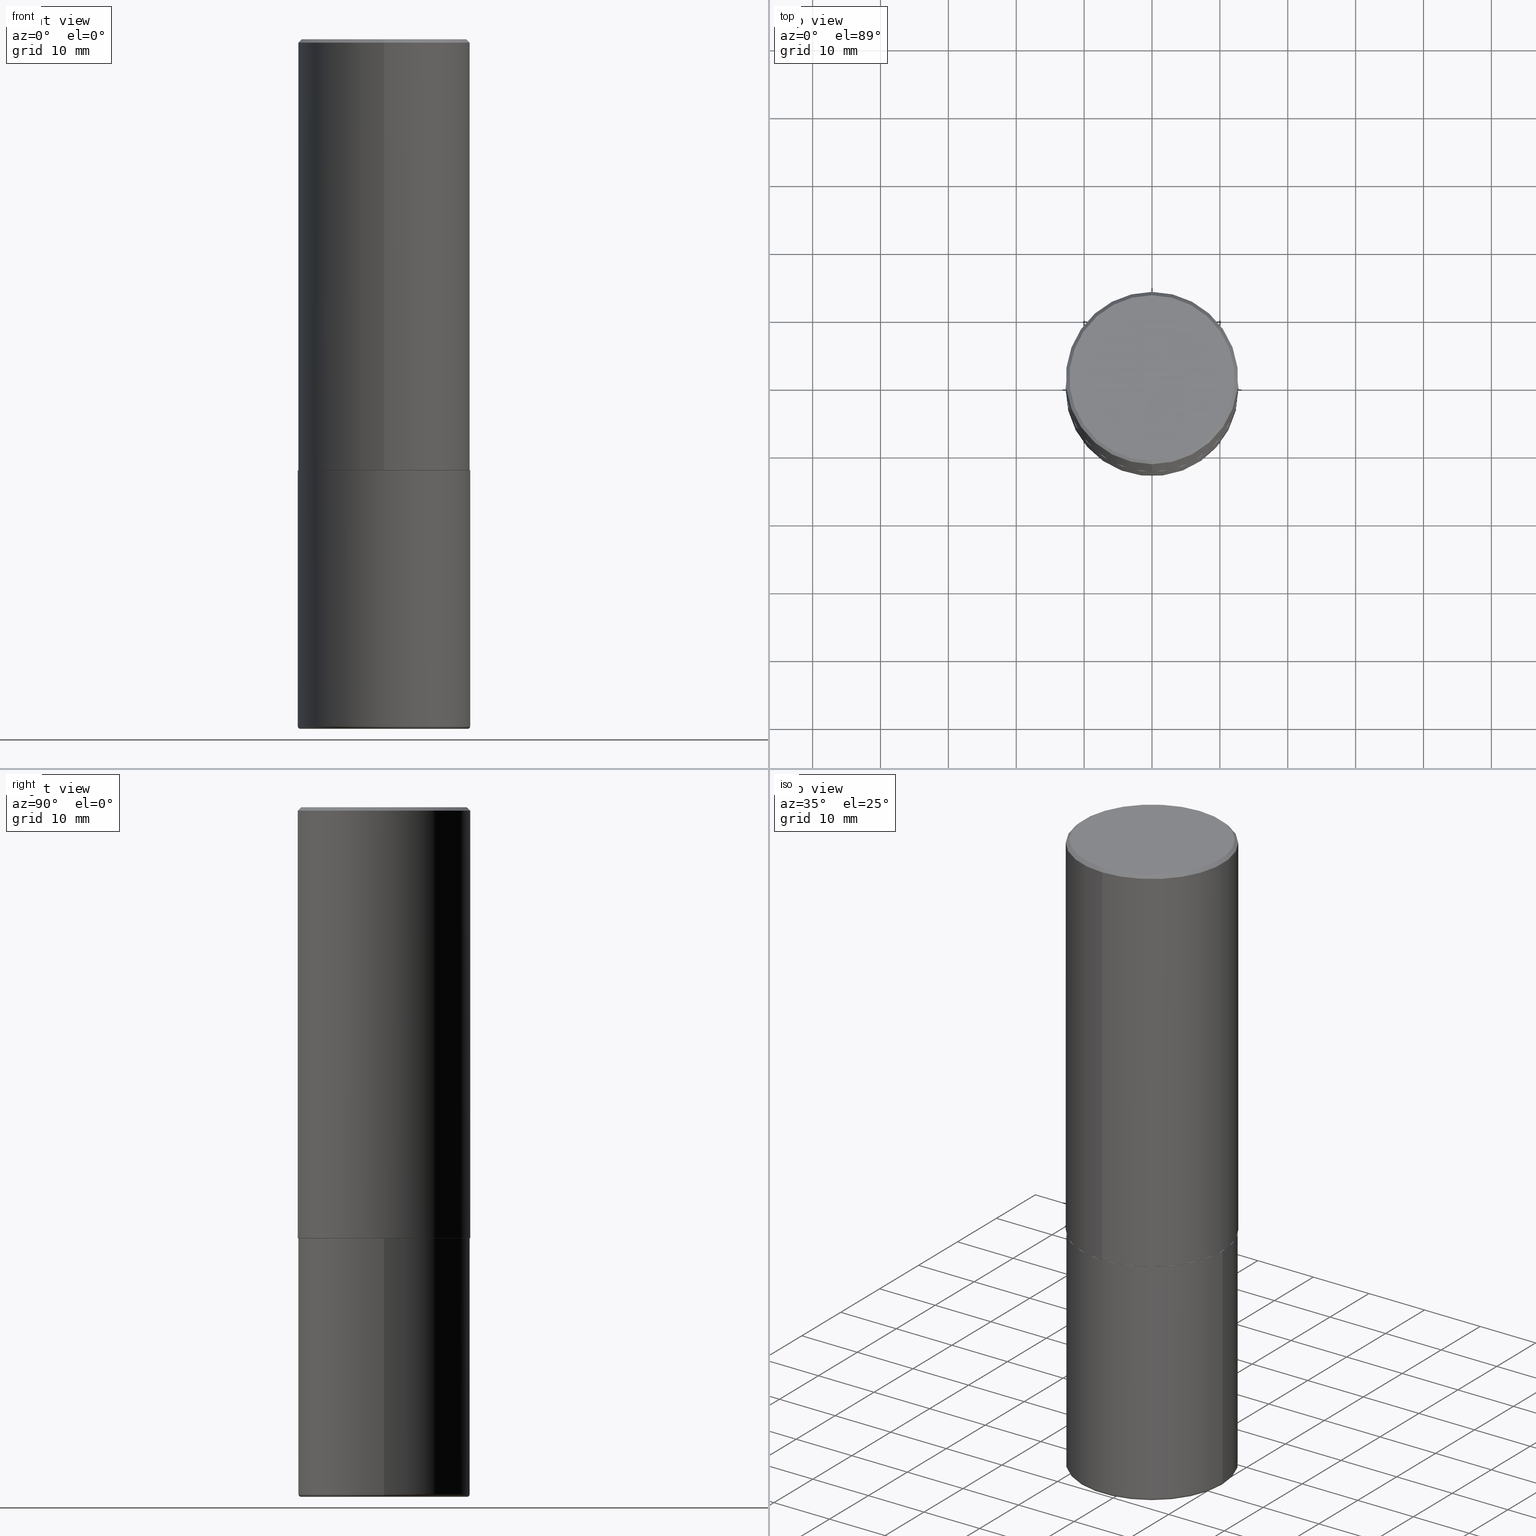
[diagram: canonical four-view strip — front | top / right | iso, engineering-drawing reading convention]
A machine part, canonical four-view strip (front | top / right | iso — engineering-drawing reading convention). The complete STEP part file that produces these views, byte-faithful:
ISO-10303-21;
HEADER;
FILE_DESCRIPTION (( 'STEP AP203' ),
    '1' );
FILE_NAME ('38302.STEP',
    '2024-03-02T21:40:23',
    ( '' ),
    ( '' ),
    'SwSTEP 2.0',
    'SolidWorks 2023',
    '' );
FILE_SCHEMA (( 'CONFIG_CONTROL_DESIGN' ));
ENDSEC;

DATA;
#1 = DIRECTION ( 'NONE',  ( -2.444465131706345255E-29, 3.492918657822378473E-15, 1.000000000000000000 ) ) ;
#2 = ORIENTED_EDGE ( 'NONE', *, *, #284, .T. ) ;
#3 = AXIS2_PLACEMENT_3D ( 'NONE', #313, #25, #157 ) ;
#4 = DIRECTION ( 'NONE',  ( -6.982962677686265922E-15, -1.000000000000000000, 3.491643216902136408E-15 ) ) ;
#5 = EDGE_CURVE ( 'NONE', #264, #274, #129, .T. ) ;
#6 = ORIENTED_EDGE ( 'NONE', *, *, #284, .F. ) ;
#7 = LINE ( 'NONE', #265, #285 ) ;
#8 = EDGE_LOOP ( 'NONE', ( #369, #320, #2, #331 ) ) ;
#9 = LINE ( 'NONE', #397, #297 ) ;
#10 = ORIENTED_EDGE ( 'NONE', *, *, #336, .F. ) ;
#11 = ADVANCED_FACE ( 'NONE', ( #398 ), #108, .T. ) ;
#12 = DIRECTION ( 'NONE',  ( 1.000000000000000000, -6.982962677686265922E-15, 0.000000000000000000 ) ) ;
#13 = CC_DESIGN_APPROVAL ( #219, ( #121 ) ) ;
#14 = VERTEX_POINT ( 'NONE', #365 ) ;
#15 = PERSON_AND_ORGANIZATION ( #266, #298 ) ;
#16 = LINE ( 'NONE', #59, #60 ) ;
#17 = LINE ( 'NONE', #412, #279 ) ;
#18 = CARTESIAN_POINT ( 'NONE',  ( 3.545608251442960663E-15, 0.4989999999999912283, -2.500000000000001332 ) ) ;
#19 = EDGE_CURVE ( 'NONE', #148, #14, #410, .T. ) ;
#20 = APPROVAL_STATUS ( 'not_yet_approved' ) ;
#21 = AXIS2_PLACEMENT_3D ( 'NONE', #158, #151, #249 ) ;
#22 = DIRECTION ( 'NONE',  ( 2.438088387897960049E-29, -3.491481338843145188E-15, -1.000000000000000000 ) ) ;
#23 = ADVANCED_BREP_SHAPE_REPRESENTATION ( '38302', ( #100, #374, #101 ), #291 ) ;
#24 = EDGE_CURVE ( 'NONE', #177, #256, #54, .T. ) ;
#25 = DIRECTION ( 'NONE',  ( -2.444465131706345255E-29, 3.492918657822378473E-15, 1.000000000000000000 ) ) ;
#26 = APPROVAL_STATUS ( 'not_yet_approved' ) ;
#27 = DIRECTION ( 'NONE',  ( 6.982962677686265922E-15, 1.000000000000000000, -3.491643216902136408E-15 ) ) ;
#28 = ADVANCED_FACE ( 'NONE', ( #214 ), #403, .T. ) ;
#29 = ORIENTED_EDGE ( 'NONE', *, *, #356, .F. ) ;
#30 = AXIS2_PLACEMENT_3D ( 'NONE', #63, #277, #188 ) ;
#31 = PERSON_AND_ORGANIZATION ( #266, #298 ) ;
#32 = CC_DESIGN_PERSON_AND_ORGANIZATION_ASSIGNMENT ( #31, #353, ( #330 ) ) ;
#33 = CIRCLE ( 'NONE', #76, 0.4799999999999998157 ) ;
#34 = VECTOR ( 'NONE', #166, 39.37007874015748143 ) ;
#35 = ORIENTED_EDGE ( 'NONE', *, *, #268, .T. ) ;
#36 = CARTESIAN_POINT ( 'NONE',  ( 9.745193192647769069E-29, -1.391355313528993407E-14, -3.984999999999999876 ) ) ;
#37 = ORIENTED_EDGE ( 'NONE', *, *, #336, .T. ) ;
#38 = CC_DESIGN_DATE_AND_TIME_ASSIGNMENT ( #319, #224, ( #330 ) ) ;
#39 = CARTESIAN_POINT ( 'NONE',  ( 6.113672015462842613E-29, -8.728703347107864943E-15, -2.500000000000000000 ) ) ;
#40 = DIRECTION ( 'NONE',  ( 1.000000000000000000, -6.982962677686269077E-15, 0.000000000000000000 ) ) ;
#41 = APPLICATION_CONTEXT ( 'configuration controlled 3d designs of mechanical parts and assemblies' ) ;
#42 = AXIS2_PLACEMENT_3D ( 'NONE', #259, #107, #4 ) ;
#43 = AXIS2_PLACEMENT_3D ( 'NONE', #240, #156, #348 ) ;
#44 = DIRECTION ( 'NONE',  ( -2.445468806185136597E-29, 3.491481338843145583E-15, 1.000000000000000000 ) ) ;
#45 = VERTEX_POINT ( 'NONE', #307 ) ;
#46 = CARTESIAN_POINT ( 'NONE',  ( -3.491481338843073796E-15, -0.5000000000000089928, -2.498999999999998778 ) ) ;
#47 = ORIENTED_EDGE ( 'NONE', *, *, #278, .T. ) ;
#48 = ADVANCED_FACE ( 'NONE', ( #215 ), #181, .T. ) ;
#49 = DIRECTION ( 'NONE',  ( -2.445468806185136597E-29, 3.491481338843145583E-15, 1.000000000000000000 ) ) ;
#50 = ORIENTED_EDGE ( 'NONE', *, *, #268, .F. ) ;
#51 =( NAMED_UNIT ( * ) SI_UNIT ( $, .STERADIAN. ) SOLID_ANGLE_UNIT ( ) );
#52 = CIRCLE ( 'NONE', #112, 0.5000000000000000000 ) ;
#53 = AXIS2_PLACEMENT_3D ( 'NONE', #174, #69, #235 ) ;
#54 = LINE ( 'NONE', #18, #387 ) ;
#55 = PERSON_AND_ORGANIZATION ( #266, #298 ) ;
#56 = CARTESIAN_POINT ( 'NONE',  ( 4.206032757375876713E-29, -1.146055134077212698E-14, -2.500000000000000000 ) ) ;
#57 = DATE_TIME_ROLE ( 'creation_date' ) ;
#58 = APPROVAL ( #98, 'UNSPECIFIED' ) ;
#59 = CARTESIAN_POINT ( 'NONE',  ( -0.5000000000000000000, 3.552713678800500929E-15, -2.459467545127452891E-29 ) ) ;
#60 = VECTOR ( 'NONE', #413, 39.37007874015748143 ) ;
#61 = DIRECTION ( 'NONE',  ( 5.024295867790635654E-15, 0.7071067811869121700, 0.7071067811861828645 ) ) ;
#62 = MECHANICAL_CONTEXT ( 'NONE', #91, 'mechanical' ) ;
#63 = CARTESIAN_POINT ( 'NONE',  ( 9.745193192647769069E-29, -1.391355313528993407E-14, -3.984999999999999876 ) ) ;
#64 = COORDINATED_UNIVERSAL_TIME_OFFSET ( 5, 0, .BEHIND. ) ;
#65 = AXIS2_PLACEMENT_3D ( 'NONE', #169, #228, #296 ) ;
#66 = EDGE_CURVE ( 'NONE', #396, #177, #418, .T. ) ;
#67 = VERTEX_POINT ( 'NONE', #185 ) ;
#68 = TOROIDAL_SURFACE ( 'NONE', #194, 0.4850000000000000422, 0.01500000000000011394 ) ;
#69 = DIRECTION ( 'NONE',  ( -2.445468806185136597E-29, 3.491481338843145583E-15, 1.000000000000000000 ) ) ;
#70 = ORIENTED_EDGE ( 'NONE', *, *, #190, .T. ) ;
#71 = CC_DESIGN_DATE_AND_TIME_ASSIGNMENT ( #408, #57, ( #121 ) ) ;
#72 = PLANE ( 'NONE',  #43 ) ;
#73 = EDGE_LOOP ( 'NONE', ( #80, #303, #50, #367 ) ) ;
#74 = FACE_OUTER_BOUND ( 'NONE', #104, .T. ) ;
#75 = ORIENTED_EDGE ( 'NONE', *, *, #386, .T. ) ;
#76 = AXIS2_PLACEMENT_3D ( 'NONE', #241, #373, #88 ) ;
#77 = PRODUCT_DEFINITION_FORMATION_WITH_SPECIFIED_SOURCE ( 'ANY', '', #168, .NOT_KNOWN. ) ;
#78 = DIRECTION ( 'NONE',  ( -6.982962677686265922E-15, -1.000000000000000000, 3.492918657822378473E-15 ) ) ;
#79 = ADVANCED_FACE ( 'NONE', ( #128 ), #153, .F. ) ;
#80 = ORIENTED_EDGE ( 'NONE', *, *, #66, .T. ) ;
#81 = ORIENTED_EDGE ( 'NONE', *, *, #377, .F. ) ;
#82 = LINE ( 'NONE', #308, #272 ) ;
#83 = ORIENTED_EDGE ( 'NONE', *, *, #278, .F. ) ;
#84 = AXIS2_PLACEMENT_3D ( 'NONE', #263, #361, #78 ) ;
#85 =( CONVERSION_BASED_UNIT ( 'INCH', #344 ) LENGTH_UNIT ( ) NAMED_UNIT ( #395 ) );
#86 = CIRCLE ( 'NONE', #254, 0.4799999999999998157 ) ;
#87 = CONICAL_SURFACE ( 'NONE', #124, 0.4989999999999999991, 0.7853981633979605359 ) ;
#88 = DIRECTION ( 'NONE',  ( -6.982962677686265922E-15, -1.000000000000000000, 3.492918657822378473E-15 ) ) ;
#89 = EDGE_CURVE ( 'NONE', #256, #326, #216, .T. ) ;
#90 = APPROVAL_ROLE ( '' ) ;
#91 = APPLICATION_CONTEXT ( 'configuration controlled 3d designs of mechanical parts and assemblies' ) ;
#92 = DIRECTION ( 'NONE',  ( -1.000000000000000000, 6.982962677686265922E-15, -4.876176775795935793E-29 ) ) ;
#93 = CARTESIAN_POINT ( 'NONE',  ( 3.549160965121762351E-15, 0.4989999999999912283, -2.500000000000001332 ) ) ;
#94 = AXIS2_PLACEMENT_3D ( 'NONE', #111, #233, #347 ) ;
#95 = EDGE_CURVE ( 'NONE', #197, #67, #322, .T. ) ;
#96 = CC_DESIGN_APPROVAL ( #58, ( #330 ) ) ;
#97 = COORDINATED_UNIVERSAL_TIME_OFFSET ( 5, 0, .BEHIND. ) ;
#98 = APPROVAL_STATUS ( 'not_yet_approved' ) ;
#99 = SHAPE_DEFINITION_REPRESENTATION ( #160, #23 ) ;
#100 = MANIFOLD_SOLID_BREP ( 'Body-Move/Copy2[1]', #242 ) ;
#101 = AXIS2_PLACEMENT_3D ( 'NONE', #123, #375, #184 ) ;
#102 = DIRECTION ( 'NONE',  ( 6.982962677686265922E-15, 1.000000000000000000, -3.491643216902136408E-15 ) ) ;
#103 = EDGE_CURVE ( 'NONE', #197, #274, #16, .T. ) ;
#104 = EDGE_LOOP ( 'NONE', ( #221, #175, #299, #385 ) ) ;
#105 = DIRECTION ( 'NONE',  ( -2.445468806185136597E-29, 3.491481338843145583E-15, 1.000000000000000000 ) ) ;
#106 = ORIENTED_EDGE ( 'NONE', *, *, #95, .T. ) ;
#107 = DIRECTION ( 'NONE',  ( -2.444465131706345255E-29, 3.492918657822378473E-15, 1.000000000000000000 ) ) ;
#108 = CYLINDRICAL_SURFACE ( 'NONE', #171, 0.5000000000000000000 ) ;
#109 = ADVANCED_FACE ( 'NONE', ( #409 ), #122, .T. ) ;
#110 = FACE_OUTER_BOUND ( 'NONE', #145, .T. ) ;
#111 = CARTESIAN_POINT ( 'NONE',  ( 4.888930263412717169E-31, -6.985837315644793974E-17, -0.02000000000000010797 ) ) ;
#112 = AXIS2_PLACEMENT_3D ( 'NONE', #39, #49, #232 ) ;
#113 = CC_DESIGN_PERSON_AND_ORGANIZATION_ASSIGNMENT ( #220, #350, ( #77 ) ) ;
#114 = DIRECTION ( 'NONE',  ( -2.444465131706345255E-29, 3.492918657822378473E-15, 1.000000000000000000 ) ) ;
#115 = ORIENTED_EDGE ( 'NONE', *, *, #118, .F. ) ;
#116 = PERSON_AND_ORGANIZATION_ROLE ( 'design_owner' ) ;
#117 = EDGE_LOOP ( 'NONE', ( #10, #252, #270, #251 ) ) ;
#118 = EDGE_CURVE ( 'NONE', #142, #45, #312, .T. ) ;
#119 = PERSON_AND_ORGANIZATION ( #266, #298 ) ;
#120 = CARTESIAN_POINT ( 'NONE',  ( 3.421651712066270057E-15, 0.4799999999999998157, -1.552124180431797316E-15 ) ) ;
#121 = PRODUCT_DEFINITION ( 'UNKNOWN', '', #77, #351 ) ;
#122 = CONICAL_SURFACE ( 'NONE', #290, 0.5000000000000000000, 0.7853981633974473908 ) ;
#123 = CARTESIAN_POINT ( 'NONE',  ( 0.000000000000000000, 0.000000000000000000, 0.000000000000000000 ) ) ;
#124 = AXIS2_PLACEMENT_3D ( 'NONE', #359, #1, #332 ) ;
#125 = CARTESIAN_POINT ( 'NONE',  ( 6.111162829265862436E-29, -8.732296644555945592E-15, -2.499999999999999556 ) ) ;
#126 = DIRECTION ( 'NONE',  ( -6.982962677686265922E-15, -1.000000000000000000, 3.284787166730577015E-15 ) ) ;
#127 = FACE_OUTER_BOUND ( 'NONE', #117, .T. ) ;
#128 = FACE_OUTER_BOUND ( 'NONE', #335, .T. ) ;
#129 = CIRCLE ( 'NONE', #163, 0.5000000000000000000 ) ;
#130 = DIRECTION ( 'NONE',  ( 2.444465131706345255E-29, -3.492918657822378473E-15, -1.000000000000000000 ) ) ;
#131 = AXIS2_PLACEMENT_3D ( 'NONE', #152, #337, #246 ) ;
#132 = SECURITY_CLASSIFICATION_LEVEL ( 'unclassified' ) ;
#133 = EDGE_LOOP ( 'NONE', ( #35, #37, #405, #81 ) ) ;
#134 = EDGE_LOOP ( 'NONE', ( #83, #115 ) ) ;
#135 = PERSON_AND_ORGANIZATION ( #266, #298 ) ;
#136 = LINE ( 'NONE', #201, #34 ) ;
#137 = EDGE_LOOP ( 'NONE', ( #295, #159, #333, #237 ) ) ;
#138 = APPROVAL_PERSON_ORGANIZATION ( #135, #58, #321 ) ;
#139 = CYLINDRICAL_SURFACE ( 'NONE', #84, 0.5000000000000001110 ) ;
#140 = VERTEX_POINT ( 'NONE', #120 ) ;
#141 = DIRECTION ( 'NONE',  ( -2.445468806185136597E-29, 3.491481338843145583E-15, 1.000000000000000000 ) ) ;
#142 = VERTEX_POINT ( 'NONE', #210 ) ;
#143 = EDGE_CURVE ( 'NONE', #177, #396, #261, .T. ) ;
#144 = UNCERTAINTY_MEASURE_WITH_UNIT (LENGTH_MEASURE( 1.000000000000000082E-05 ), #85, 'distance_accuracy_value', 'NONE');
#145 = EDGE_LOOP ( 'NONE', ( #393, #323, #207, #29 ) ) ;
#146 = CIRCLE ( 'NONE', #382, 0.01500000000000011394 ) ;
#147 = DIRECTION ( 'NONE',  ( 2.444465131706345255E-29, -3.492918657822378473E-15, -1.000000000000000000 ) ) ;
#148 = VERTEX_POINT ( 'NONE', #379 ) ;
#149 = DIRECTION ( 'NONE',  ( -4.937700262167077130E-15, -0.7071067811869072850, 0.7071067811861877495 ) ) ;
#150 = CC_DESIGN_PERSON_AND_ORGANIZATION_ASSIGNMENT ( #371, #213, ( #121 ) ) ;
#151 = DIRECTION ( 'NONE',  ( -2.445468806185136597E-29, 3.491481338843145583E-15, 1.000000000000000000 ) ) ;
#152 = CARTESIAN_POINT ( 'NONE',  ( 0.000000000000000000, 0.000000000000000000, 0.000000000000000000 ) ) ;
#153 = PLANE ( 'NONE',  #222 ) ;
#154 = CYLINDRICAL_SURFACE ( 'NONE', #131, 0.5000000000000001110 ) ;
#155 = CARTESIAN_POINT ( 'NONE',  ( -3.430248998885764992E-15, -0.5000000000000001110, -0.01999999999999835937 ) ) ;
#156 = DIRECTION ( 'NONE',  ( 2.444465131706344694E-29, -3.492918657822378868E-15, -1.000000000000000000 ) ) ;
#157 = DIRECTION ( 'NONE',  ( -6.982962677686266711E-15, -1.000000000000000000, 3.278217592397114284E-15 ) ) ;
#158 = CARTESIAN_POINT ( 'NONE',  ( 9.781875224740546387E-29, -1.396592535537258233E-14, -4.000000000000000000 ) ) ;
#159 = ORIENTED_EDGE ( 'NONE', *, *, #118, .T. ) ;
#160 = PRODUCT_DEFINITION_SHAPE ( 'NONE', 'NONE',  #121 ) ;
#161 = COORDINATED_UNIVERSAL_TIME_OFFSET ( 5, 0, .BEHIND. ) ;
#162 = ORIENTED_EDGE ( 'NONE', *, *, #143, .F. ) ;
#163 = AXIS2_PLACEMENT_3D ( 'NONE', #199, #328, #40 ) ;
#164 = AXIS2_PLACEMENT_3D ( 'NONE', #342, #209, #273 ) ;
#165 = EDGE_CURVE ( 'NONE', #301, #140, #86, .T. ) ;
#166 = DIRECTION ( 'NONE',  ( -2.445468806185136877E-29, 3.491481338843145188E-15, 1.000000000000000000 ) ) ;
#167 = ORIENTED_EDGE ( 'NONE', *, *, #165, .F. ) ;
#168 = PRODUCT ( '38302', '38302', '', ( #62 ) ) ;
#169 = CARTESIAN_POINT ( 'NONE',  ( 0.000000000000000000, 0.000000000000000000, 0.000000000000000000 ) ) ;
#170 = ORIENTED_EDGE ( 'NONE', *, *, #356, .T. ) ;
#171 = AXIS2_PLACEMENT_3D ( 'NONE', #231, #202, #173 ) ;
#172 = DIRECTION ( 'NONE',  ( 1.000000000000000000, -6.982962677686269077E-15, 4.883557194083113462E-29 ) ) ;
#173 = DIRECTION ( 'NONE',  ( 1.000000000000000000, -6.982962677686266711E-15, 4.876176775795935793E-29 ) ) ;
#174 = CARTESIAN_POINT ( 'NONE',  ( 9.745193192647769069E-29, -1.391355313528993407E-14, -3.984999999999999876 ) ) ;
#175 = ORIENTED_EDGE ( 'NONE', *, *, #143, .T. ) ;
#176 = DIRECTION ( 'NONE',  ( -6.982962677686266711E-15, -1.000000000000000000, 3.491481338843145583E-15 ) ) ;
#177 = VERTEX_POINT ( 'NONE', #93 ) ;
#178 = CIRCLE ( 'NONE', #415, 0.4850000000000000422 ) ;
#179 = EDGE_CURVE ( 'NONE', #140, #301, #33, .T. ) ;
#180 = LOCAL_TIME ( 16, 40, 23.00000000000000000, #217 ) ;
#181 = PLANE ( 'NONE',  #191 ) ;
#182 = CARTESIAN_POINT ( 'NONE',  ( 6.111162829265862436E-29, -8.732296644555945592E-15, -2.499999999999999556 ) ) ;
#183 = AXIS2_PLACEMENT_3D ( 'NONE', #56, #22, #92 ) ;
#184 = DIRECTION ( 'NONE',  ( 1.000000000000000000, 0.000000000000000000, 0.000000000000000000 ) ) ;
#185 = CARTESIAN_POINT ( 'NONE',  ( 0.5000000000000001110, -1.740503447413306742E-14, -3.984999999999999876 ) ) ;
#186 = ADVANCED_FACE ( 'NONE', ( #212 ), #343, .F. ) ;
#187 = CALENDAR_DATE ( 2024, 2, 3 ) ;
#188 = DIRECTION ( 'NONE',  ( 1.000000000000000000, -6.982962677686266711E-15, 0.000000000000000000 ) ) ;
#189 = DATE_AND_TIME ( #193, #223 ) ;
#190 = EDGE_CURVE ( 'NONE', #301, #148, #311, .T. ) ;
#191 = AXIS2_PLACEMENT_3D ( 'NONE', #315, #283, #345 ) ;
#192 = TOROIDAL_SURFACE ( 'NONE', #53, 0.4850000000000000422, 0.01500000000000011394 ) ;
#193 = CALENDAR_DATE ( 2024, 2, 3 ) ;
#194 = AXIS2_PLACEMENT_3D ( 'NONE', #327, #105, #172 ) ;
#195 = CIRCLE ( 'NONE', #164, 0.01500000000000011394 ) ;
#196 = FACE_OUTER_BOUND ( 'NONE', #262, .T. ) ;
#197 = VERTEX_POINT ( 'NONE', #302 ) ;
#198 = DIRECTION ( 'NONE',  ( -4.851104656540959542E-15, -0.7071067811865493491, -0.7071067811865456854 ) ) ;
#199 = CARTESIAN_POINT ( 'NONE',  ( 6.113672015462842613E-29, -8.728703347107864943E-15, -2.500000000000000000 ) ) ;
#200 = EDGE_CURVE ( 'NONE', #14, #148, #316, .T. ) ;
#201 = CARTESIAN_POINT ( 'NONE',  ( 0.5000000000000000000, -3.491481338843133355E-15, 2.438088387897967896E-29 ) ) ;
#202 = DIRECTION ( 'NONE',  ( -2.445468806185136597E-29, 3.491481338843145583E-15, 1.000000000000000000 ) ) ;
#203 = AXIS2_PLACEMENT_3D ( 'NONE', #125, #411, #381 ) ;
#204 = CARTESIAN_POINT ( 'NONE',  ( 3.552713678800533273E-15, 0.4999999999999916178, -2.499000000000001886 ) ) ;
#205 = EDGE_LOOP ( 'NONE', ( #360, #229 ) ) ;
#206 = CARTESIAN_POINT ( 'NONE',  ( -0.5000000000000000000, -7.768414562398398576E-15, -2.500000000000000000 ) ) ;
#207 = ORIENTED_EDGE ( 'NONE', *, *, #5, .F. ) ;
#208 = EDGE_CURVE ( 'NONE', #67, #197, #234, .T. ) ;
#209 = DIRECTION ( 'NONE',  ( 7.105427357601001859E-15, 1.000000000000000000, -3.491481338843145583E-15 ) ) ;
#210 = CARTESIAN_POINT ( 'NONE',  ( -0.4850000000000000422, -1.044031627171276444E-14, -4.000000000000000000 ) ) ;
#211 = CONICAL_SURFACE ( 'NONE', #260, 0.5000000000000000000, 0.7853981633974473908 ) ;
#212 = FACE_OUTER_BOUND ( 'NONE', #205, .T. ) ;
#213 = PERSON_AND_ORGANIZATION_ROLE ( 'creator' ) ;
#214 = FACE_OUTER_BOUND ( 'NONE', #73, .T. ) ;
#215 = FACE_OUTER_BOUND ( 'NONE', #134, .T. ) ;
#216 = CIRCLE ( 'NONE', #3, 0.5000000000000002220 ) ;
#217 = COORDINATED_UNIVERSAL_TIME_OFFSET ( 5, 0, .BEHIND. ) ;
#218 = CARTESIAN_POINT ( 'NONE',  ( 6.111162829265862436E-29, -8.732296644555945592E-15, -2.499999999999999556 ) ) ;
#219 = APPROVAL ( #26, 'UNSPECIFIED' ) ;
#220 = PERSON_AND_ORGANIZATION ( #266, #298 ) ;
#221 = ORIENTED_EDGE ( 'NONE', *, *, #24, .F. ) ;
#222 = AXIS2_PLACEMENT_3D ( 'NONE', #218, #414, #245 ) ;
#223 = LOCAL_TIME ( 16, 40, 23.00000000000000000, #64 ) ;
#224 = DATE_TIME_ROLE ( 'classification_date' ) ;
#225 = FACE_OUTER_BOUND ( 'NONE', #133, .T. ) ;
#226 = CLOSED_SHELL ( 'NONE', ( #28, #314, #309, #109, #390, #324, #79, #363 ) ) ;
#227 = ORIENTED_EDGE ( 'NONE', *, *, #236, .F. ) ;
#228 = DIRECTION ( 'NONE',  ( -2.445468806185136597E-29, 3.491481338843145583E-15, 1.000000000000000000 ) ) ;
#229 = ORIENTED_EDGE ( 'NONE', *, *, #236, .T. ) ;
#230 = DIRECTION ( 'NONE',  ( -2.444465131706345255E-29, 3.492918657822378868E-15, 1.000000000000000000 ) ) ;
#231 = CARTESIAN_POINT ( 'NONE',  ( 0.000000000000000000, 0.000000000000000000, 0.000000000000000000 ) ) ;
#232 = DIRECTION ( 'NONE',  ( 1.000000000000000000, -6.982962677686269077E-15, 0.000000000000000000 ) ) ;
#233 = DIRECTION ( 'NONE',  ( -2.444465131706345255E-29, 3.492918657822378473E-15, 1.000000000000000000 ) ) ;
#234 = CIRCLE ( 'NONE', #271, 0.5000000000000000000 ) ;
#235 = DIRECTION ( 'NONE',  ( 1.000000000000000000, -6.982962677686269077E-15, 4.883557194083113462E-29 ) ) ;
#236 = EDGE_CURVE ( 'NONE', #274, #264, #52, .T. ) ;
#237 = ORIENTED_EDGE ( 'NONE', *, *, #95, .F. ) ;
#238 = COORDINATED_UNIVERSAL_TIME_OFFSET ( 5, 0, .BEHIND. ) ;
#239 = ORIENTED_EDGE ( 'NONE', *, *, #66, .F. ) ;
#240 = CARTESIAN_POINT ( 'NONE',  ( 3.351822085289406364E-15, 0.4799999999999998157, -1.614362568093269153E-15 ) ) ;
#241 = CARTESIAN_POINT ( 'NONE',  ( -3.042791369841808055E-45, 4.347872509910743958E-31, 1.244767753229437217E-16 ) ) ;
#242 = CLOSED_SHELL ( 'NONE', ( #287, #257, #186, #11, #352, #48 ) ) ;
#243 =( NAMED_UNIT ( * ) PLANE_ANGLE_UNIT ( ) SI_UNIT ( $, .RADIAN. ) );
#244 = CARTESIAN_POINT ( 'NONE',  ( -3.042791369841808055E-45, 4.347872509910743958E-31, 1.244767753229437217E-16 ) ) ;
#245 = DIRECTION ( 'NONE',  ( -6.982962677686265922E-15, -1.000000000000000000, 3.492918657822378868E-15 ) ) ;
#246 = DIRECTION ( 'NONE',  ( -6.982962677686265922E-15, -1.000000000000000000, 3.492918657822378473E-15 ) ) ;
#247 = CARTESIAN_POINT ( 'NONE',  ( 4.888930263412717169E-31, -6.985837315644793974E-17, -0.02000000000000010797 ) ) ;
#248 = CIRCLE ( 'NONE', #357, 0.5000000000000002220 ) ;
#249 = DIRECTION ( 'NONE',  ( 1.000000000000000000, -6.982962677686265922E-15, 0.000000000000000000 ) ) ;
#250 = EDGE_CURVE ( 'NONE', #45, #67, #146, .T. ) ;
#251 = ORIENTED_EDGE ( 'NONE', *, *, #200, .F. ) ;
#252 = ORIENTED_EDGE ( 'NONE', *, *, #89, .T. ) ;
#253 = PERSON_AND_ORGANIZATION_ROLE ( 'design_supplier' ) ;
#254 = AXIS2_PLACEMENT_3D ( 'NONE', #244, #376, #338 ) ;
#255 = LOCAL_TIME ( 16, 40, 23.00000000000000000, #97 ) ;
#256 = VERTEX_POINT ( 'NONE', #204 ) ;
#257 = ADVANCED_FACE ( 'NONE', ( #196 ), #68, .T. ) ;
#258 = EDGE_LOOP ( 'NONE', ( #305, #391 ) ) ;
#259 = CARTESIAN_POINT ( 'NONE',  ( 4.888930263412717169E-31, -6.985837315644793974E-17, -0.02000000000000010797 ) ) ;
#260 = AXIS2_PLACEMENT_3D ( 'NONE', #334, #147, #102 ) ;
#261 = CIRCLE ( 'NONE', #203, 0.4989999999999999991 ) ;
#262 = EDGE_LOOP ( 'NONE', ( #47, #75, #362, #401 ) ) ;
#263 = CARTESIAN_POINT ( 'NONE',  ( 0.000000000000000000, 0.000000000000000000, 0.000000000000000000 ) ) ;
#264 = VERTEX_POINT ( 'NONE', #392 ) ;
#265 = CARTESIAN_POINT ( 'NONE',  ( 3.491481338843133355E-15, 0.4999999999999999445, -0.02000000000000185310 ) ) ;
#266 = PERSON ( 'UNSPECIFIED', 'UNSPECIFIED', 'UNSPECIFIED', ('UNSPECIFIED'), ('UNSPECIFIED'), ('UNSPECIFIED') ) ;
#267 = ORIENTED_EDGE ( 'NONE', *, *, #19, .T. ) ;
#268 = EDGE_CURVE ( 'NONE', #326, #256, #248, .T. ) ;
#269 = CARTESIAN_POINT ( 'NONE',  ( 0.4850000000000000422, -1.730029003396777405E-14, -3.984999999999999876 ) ) ;
#270 = ORIENTED_EDGE ( 'NONE', *, *, #377, .T. ) ;
#271 = AXIS2_PLACEMENT_3D ( 'NONE', #36, #44, #402 ) ;
#272 = VECTOR ( 'NONE', #149, 39.37007874015748143 ) ;
#273 = DIRECTION ( 'NONE',  ( -1.000000000000000000, 7.105427357601066545E-15, 0.000000000000000000 ) ) ;
#274 = VERTEX_POINT ( 'NONE', #206 ) ;
#275 = APPROVAL_DATE_TIME ( #406, #219 ) ;
#276 = DIRECTION ( 'NONE',  ( -2.444465131706345255E-29, 3.492918657822378473E-15, 1.000000000000000000 ) ) ;
#277 = DIRECTION ( 'NONE',  ( -2.445468806185136597E-29, 3.491481338843145583E-15, 1.000000000000000000 ) ) ;
#278 = EDGE_CURVE ( 'NONE', #45, #142, #178, .T. ) ;
#279 = VECTOR ( 'NONE', #346, 39.37007874015748143 ) ;
#280 = APPROVAL_ROLE ( '' ) ;
#281 = DIRECTION ( 'NONE',  ( -2.444465131706345255E-29, 3.492918657822378473E-15, 1.000000000000000000 ) ) ;
#282 = CARTESIAN_POINT ( 'NONE',  ( -3.484498376165385415E-15, -0.4990000000000087144, -2.499999999999997780 ) ) ;
#283 = DIRECTION ( 'NONE',  ( 2.438088387897960049E-29, -3.491481338843145188E-15, -1.000000000000000000 ) ) ;
#284 = EDGE_CURVE ( 'NONE', #140, #14, #7, .T. ) ;
#285 = VECTOR ( 'NONE', #329, 39.37007874015748143 ) ;
#286 = PERSON_AND_ORGANIZATION ( #266, #298 ) ;
#287 = ADVANCED_FACE ( 'NONE', ( #110 ), #366, .T. ) ;
#288 = EDGE_LOOP ( 'NONE', ( #167, #70, #267, #6 ) ) ;
#289 = CALENDAR_DATE ( 2024, 2, 3 ) ;
#290 = AXIS2_PLACEMENT_3D ( 'NONE', #247, #130, #27 ) ;
#291 =( GEOMETRIC_REPRESENTATION_CONTEXT ( 3 ) GLOBAL_UNCERTAINTY_ASSIGNED_CONTEXT ( ( #144 ) ) GLOBAL_UNIT_ASSIGNED_CONTEXT ( ( #85, #243, #51 ) ) REPRESENTATION_CONTEXT ( 'NONE', 'WORKASPACE' ) );
#292 = ORIENTED_EDGE ( 'NONE', *, *, #103, .F. ) ;
#293 = CC_DESIGN_PERSON_AND_ORGANIZATION_ASSIGNMENT ( #15, #116, ( #168 ) ) ;
#294 = FACE_OUTER_BOUND ( 'NONE', #258, .T. ) ;
#295 = ORIENTED_EDGE ( 'NONE', *, *, #386, .F. ) ;
#296 = DIRECTION ( 'NONE',  ( 1.000000000000000000, -6.982962677686266711E-15, 4.876176775795935793E-29 ) ) ;
#297 = VECTOR ( 'NONE', #230, 39.37007874015748143 ) ;
#298 = ORGANIZATION ( 'UNSPECIFIED', 'UNSPECIFIED', '' ) ;
#299 = ORIENTED_EDGE ( 'NONE', *, *, #370, .T. ) ;
#300 = DIRECTION ( 'NONE',  ( 1.000000000000000000, -6.982962677686215435E-15, 0.000000000000000000 ) ) ;
#301 = VERTEX_POINT ( 'NONE', #394 ) ;
#302 = CARTESIAN_POINT ( 'NONE',  ( -0.5000000000000001110, -1.036083945648943156E-14, -3.984999999999999876 ) ) ;
#303 = ORIENTED_EDGE ( 'NONE', *, *, #24, .T. ) ;
#304 = CARTESIAN_POINT ( 'NONE',  ( 6.108718364134157248E-29, -8.728803725898125516E-15, -2.499000000000000110 ) ) ;
#305 = ORIENTED_EDGE ( 'NONE', *, *, #179, .T. ) ;
#306 = VECTOR ( 'NONE', #198, 39.37007874015748143 ) ;
#307 = CARTESIAN_POINT ( 'NONE',  ( 0.4850000000000000422, -1.735266225405042074E-14, -4.000000000000000000 ) ) ;
#308 = CARTESIAN_POINT ( 'NONE',  ( -3.484498376165385415E-15, -0.4990000000000087144, -2.499999999999997780 ) ) ;
#309 = ADVANCED_FACE ( 'NONE', ( #364 ), #211, .T. ) ;
#310 = APPLICATION_PROTOCOL_DEFINITION ( 'international standard', 'config_control_design', 1994, #41 ) ;
#311 = LINE ( 'NONE', #155, #306 ) ;
#312 = CIRCLE ( 'NONE', #21, 0.4850000000000000422 ) ;
#313 = CARTESIAN_POINT ( 'NONE',  ( 6.108718364134157248E-29, -8.728803725898125516E-15, -2.499000000000000110 ) ) ;
#314 = ADVANCED_FACE ( 'NONE', ( #225 ), #139, .T. ) ;
#315 = CARTESIAN_POINT ( 'NONE',  ( 9.781875224740546387E-29, -1.396592535537258233E-14, -4.000000000000000000 ) ) ;
#316 = CIRCLE ( 'NONE', #42, 0.5000000000000000000 ) ;
#317 = APPROVAL_PERSON_ORGANIZATION ( #55, #219, #90 ) ;
#318 = LOCAL_TIME ( 16, 40, 23.00000000000000000, #161 ) ;
#319 = DATE_AND_TIME ( #389, #318 ) ;
#320 = ORIENTED_EDGE ( 'NONE', *, *, #179, .F. ) ;
#321 = APPROVAL_ROLE ( '' ) ;
#322 = CIRCLE ( 'NONE', #30, 0.5000000000000000000 ) ;
#323 = ORIENTED_EDGE ( 'NONE', *, *, #103, .T. ) ;
#324 = ADVANCED_FACE ( 'NONE', ( #74 ), #87, .T. ) ;
#325 = DIRECTION ( 'NONE',  ( -6.982962677686266711E-15, -1.000000000000000000, 3.278217592397114284E-15 ) ) ;
#326 = VERTEX_POINT ( 'NONE', #46 ) ;
#327 = CARTESIAN_POINT ( 'NONE',  ( 9.745193192647769069E-29, -1.391355313528993407E-14, -3.984999999999999876 ) ) ;
#328 = DIRECTION ( 'NONE',  ( -2.445468806185136597E-29, 3.491481338843145583E-15, 1.000000000000000000 ) ) ;
#329 = DIRECTION ( 'NONE',  ( 4.937700262164543309E-15, 0.7071067811865444641, -0.7071067811865505703 ) ) ;
#330 = SECURITY_CLASSIFICATION ( '', '', #132 ) ;
#331 = ORIENTED_EDGE ( 'NONE', *, *, #200, .T. ) ;
#332 = DIRECTION ( 'NONE',  ( -6.982962677686265922E-15, -1.000000000000000000, 3.284787166730577015E-15 ) ) ;
#333 = ORIENTED_EDGE ( 'NONE', *, *, #250, .T. ) ;
#334 = CARTESIAN_POINT ( 'NONE',  ( 4.888930263412717169E-31, -6.985837315644793974E-17, -0.02000000000000010797 ) ) ;
#335 = EDGE_LOOP ( 'NONE', ( #239, #162 ) ) ;
#336 = EDGE_CURVE ( 'NONE', #256, #14, #9, .T. ) ;
#337 = DIRECTION ( 'NONE',  ( -2.444465131706345255E-29, 3.492918657822378473E-15, 1.000000000000000000 ) ) ;
#338 = DIRECTION ( 'NONE',  ( -6.982962677686265922E-15, -1.000000000000000000, 3.492918657822378473E-15 ) ) ;
#339 = AXIS2_PLACEMENT_3D ( 'NONE', #182, #276, #126 ) ;
#340 = APPROVAL_PERSON_ORGANIZATION ( #119, #417, #280 ) ;
#341 = CC_DESIGN_PERSON_AND_ORGANIZATION_ASSIGNMENT ( #286, #253, ( #77 ) ) ;
#342 = CARTESIAN_POINT ( 'NONE',  ( -0.4850000000000000422, -1.046742086685344905E-14, -3.984999999999999876 ) ) ;
#343 = PLANE ( 'NONE',  #183 ) ;
#344 = LENGTH_MEASURE_WITH_UNIT ( LENGTH_MEASURE( 0.02539999999999999897 ), #378 );
#345 = DIRECTION ( 'NONE',  ( -1.000000000000000000, 6.982962677686265922E-15, -4.876176775795935793E-29 ) ) ;
#346 = DIRECTION ( 'NONE',  ( -2.444465131706345255E-29, 3.492918657822378868E-15, 1.000000000000000000 ) ) ;
#347 = DIRECTION ( 'NONE',  ( -6.982962677686265922E-15, -1.000000000000000000, 3.491643216902136408E-15 ) ) ;
#348 = DIRECTION ( 'NONE',  ( 6.982962677686265922E-15, 1.000000000000000000, -3.492918657822378868E-15 ) ) ;
#349 = DIRECTION ( 'NONE',  ( -6.982962677686265922E-15, -1.000000000000000000, 3.284787166730577015E-15 ) ) ;
#350 = PERSON_AND_ORGANIZATION_ROLE ( 'creator' ) ;
#351 = DESIGN_CONTEXT ( 'detailed design', #41, 'design' ) ;
#352 = ADVANCED_FACE ( 'NONE', ( #358 ), #192, .T. ) ;
#353 = PERSON_AND_ORGANIZATION_ROLE ( 'classification_officer' ) ;
#354 = APPROVAL_DATE_TIME ( #189, #58 ) ;
#355 = APPROVAL_DATE_TIME ( #416, #417 ) ;
#356 = EDGE_CURVE ( 'NONE', #67, #264, #136, .T. ) ;
#357 = AXIS2_PLACEMENT_3D ( 'NONE', #304, #114, #325 ) ;
#358 = FACE_OUTER_BOUND ( 'NONE', #137, .T. ) ;
#359 = CARTESIAN_POINT ( 'NONE',  ( 6.111162829265862436E-29, -8.732296644555945592E-15, -2.499999999999999556 ) ) ;
#360 = ORIENTED_EDGE ( 'NONE', *, *, #5, .T. ) ;
#361 = DIRECTION ( 'NONE',  ( -2.444465131706345255E-29, 3.492918657822378473E-15, 1.000000000000000000 ) ) ;
#362 = ORIENTED_EDGE ( 'NONE', *, *, #208, .F. ) ;
#363 = ADVANCED_FACE ( 'NONE', ( #294 ), #72, .F. ) ;
#364 = FACE_OUTER_BOUND ( 'NONE', #288, .T. ) ;
#365 = CARTESIAN_POINT ( 'NONE',  ( 3.491481338843133355E-15, 0.4999999999999999445, -0.02000000000000185310 ) ) ;
#366 = CYLINDRICAL_SURFACE ( 'NONE', #65, 0.5000000000000000000 ) ;
#367 = ORIENTED_EDGE ( 'NONE', *, *, #370, .F. ) ;
#368 = CALENDAR_DATE ( 2024, 2, 3 ) ;
#369 = ORIENTED_EDGE ( 'NONE', *, *, #190, .F. ) ;
#370 = EDGE_CURVE ( 'NONE', #396, #326, #82, .T. ) ;
#371 = PERSON_AND_ORGANIZATION ( #266, #298 ) ;
#372 = AXIS2_PLACEMENT_3D ( 'NONE', #384, #281, #349 ) ;
#373 = DIRECTION ( 'NONE',  ( -2.444465131706345255E-29, 3.492918657822378473E-15, 1.000000000000000000 ) ) ;
#374 = MANIFOLD_SOLID_BREP ( 'Body-Move/Copy2[2]', #226 ) ;
#375 = DIRECTION ( 'NONE',  ( 0.000000000000000000, 0.000000000000000000, 1.000000000000000000 ) ) ;
#376 = DIRECTION ( 'NONE',  ( -2.444465131706345255E-29, 3.492918657822378473E-15, 1.000000000000000000 ) ) ;
#377 = EDGE_CURVE ( 'NONE', #326, #148, #17, .T. ) ;
#378 =( LENGTH_UNIT ( ) NAMED_UNIT ( * ) SI_UNIT ( $, .METRE. ) );
#379 = CARTESIAN_POINT ( 'NONE',  ( -3.430248998885764992E-15, -0.5000000000000001110, -0.01999999999999835937 ) ) ;
#380 = APPLICATION_PROTOCOL_DEFINITION ( 'international standard', 'config_control_design', 1994, #91 ) ;
#381 = DIRECTION ( 'NONE',  ( -6.982962677686265922E-15, -1.000000000000000000, 3.284787166730577015E-15 ) ) ;
#382 = AXIS2_PLACEMENT_3D ( 'NONE', #269, #176, #300 ) ;
#383 = LOCAL_TIME ( 16, 40, 23.00000000000000000, #238 ) ;
#384 = CARTESIAN_POINT ( 'NONE',  ( 6.111162829265862436E-29, -8.732296644555945592E-15, -2.499999999999999556 ) ) ;
#385 = ORIENTED_EDGE ( 'NONE', *, *, #89, .F. ) ;
#386 = EDGE_CURVE ( 'NONE', #142, #197, #195, .T. ) ;
#387 = VECTOR ( 'NONE', #61, 39.37007874015748143 ) ;
#388 = CC_DESIGN_APPROVAL ( #417, ( #77 ) ) ;
#389 = CALENDAR_DATE ( 2024, 2, 3 ) ;
#390 = ADVANCED_FACE ( 'NONE', ( #127 ), #154, .T. ) ;
#391 = ORIENTED_EDGE ( 'NONE', *, *, #165, .T. ) ;
#392 = CARTESIAN_POINT ( 'NONE',  ( 0.5000000000000000000, -1.222018468595099830E-14, -2.500000000000000000 ) ) ;
#393 = ORIENTED_EDGE ( 'NONE', *, *, #208, .T. ) ;
#394 = CARTESIAN_POINT ( 'NONE',  ( -3.361644018908049661E-15, -0.4799999999999998157, 1.801077731077684661E-15 ) ) ;
#395 = DIMENSIONAL_EXPONENTS ( 1.000000000000000000, 0.000000000000000000, 0.000000000000000000, 0.000000000000000000, 0.000000000000000000, 0.000000000000000000, 0.000000000000000000 ) ;
#396 = VERTEX_POINT ( 'NONE', #282 ) ;
#397 = CARTESIAN_POINT ( 'NONE',  ( 3.552713678800501718E-15, 0.5000000000000001110, -1.746459328911189631E-15 ) ) ;
#398 = FACE_OUTER_BOUND ( 'NONE', #407, .T. ) ;
#399 = PRODUCT_RELATED_PRODUCT_CATEGORY ( 'detail', '', ( #168 ) ) ;
#400 = CARTESIAN_POINT ( 'NONE',  ( 9.781875224740546387E-29, -1.396592535537258233E-14, -4.000000000000000000 ) ) ;
#401 = ORIENTED_EDGE ( 'NONE', *, *, #250, .F. ) ;
#402 = DIRECTION ( 'NONE',  ( 1.000000000000000000, -6.982962677686266711E-15, 0.000000000000000000 ) ) ;
#403 = CONICAL_SURFACE ( 'NONE', #372, 0.4989999999999999991, 0.7853981633979605359 ) ;
#404 = CC_DESIGN_SECURITY_CLASSIFICATION ( #330, ( #77 ) ) ;
#405 = ORIENTED_EDGE ( 'NONE', *, *, #19, .F. ) ;
#406 = DATE_AND_TIME ( #187, #180 ) ;
#407 = EDGE_LOOP ( 'NONE', ( #292, #106, #170, #227 ) ) ;
#408 = DATE_AND_TIME ( #368, #383 ) ;
#409 = FACE_OUTER_BOUND ( 'NONE', #8, .T. ) ;
#410 = CIRCLE ( 'NONE', #94, 0.5000000000000000000 ) ;
#411 = DIRECTION ( 'NONE',  ( -2.444465131706345255E-29, 3.492918657822378473E-15, 1.000000000000000000 ) ) ;
#412 = CARTESIAN_POINT ( 'NONE',  ( -3.491481338843133750E-15, -0.5000000000000001110, 1.746459328911189631E-15 ) ) ;
#413 = DIRECTION ( 'NONE',  ( -2.445468806185136877E-29, 3.491481338843145188E-15, 1.000000000000000000 ) ) ;
#414 = DIRECTION ( 'NONE',  ( -2.444465131706344694E-29, 3.492918657822378868E-15, 1.000000000000000000 ) ) ;
#415 = AXIS2_PLACEMENT_3D ( 'NONE', #400, #141, #12 ) ;
#416 = DATE_AND_TIME ( #289, #255 ) ;
#417 = APPROVAL ( #20, 'UNSPECIFIED' ) ;
#418 = CIRCLE ( 'NONE', #339, 0.4989999999999999991 ) ;
ENDSEC;
END-ISO-10303-21;
